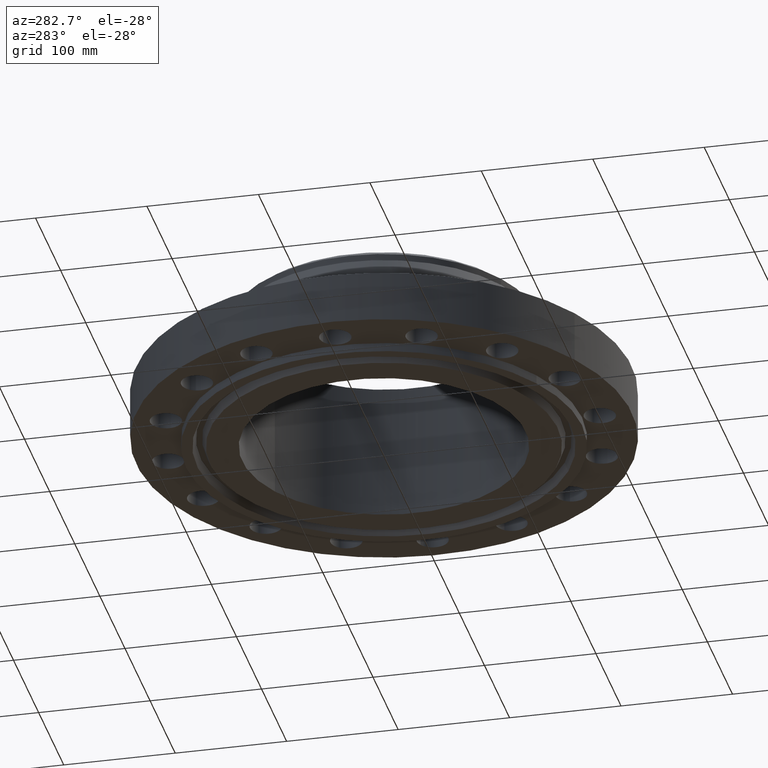
[diagram: clean part render]
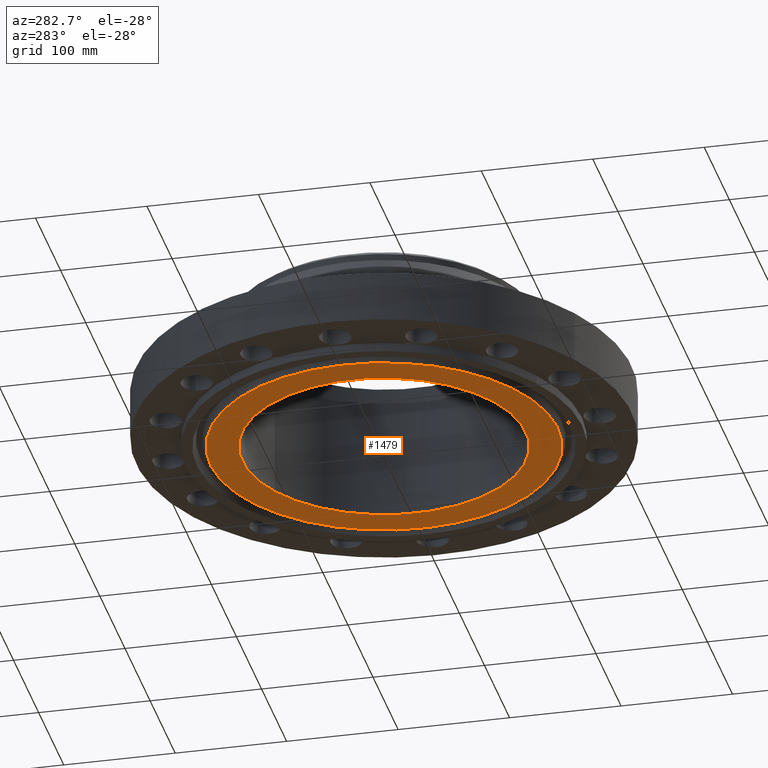
[diagram: same view with one face highlighted and labeled with its STEP entity id]
A machine part, auxiliary view. The second image highlights one B-rep face of the part: STEP entity #1479.
In plain terms, the highlighted planar face has unit normal (0, 0, -1).
Its self-contained STEP definition (entity closure, byte-faithful):
#378=AXIS2_PLACEMENT_3D('Circle Axis2P3D',#376,#377,$) ;
#402=AXIS2_PLACEMENT_3D('Circle Axis2P3D',#400,#401,$) ;
#1432=AXIS2_PLACEMENT_3D('Plane Axis2P3D',#1429,#1430,#1431) ;
#1459=AXIS2_PLACEMENT_3D('Circle Axis2P3D',#1457,#1458,$) ;
#1468=AXIS2_PLACEMENT_3D('Circle Axis2P3D',#1466,#1467,$) ;
#373=CARTESIAN_POINT('Vertex',(2.40192194842,4.39668863509,-0.313000000001)) ;
#376=CARTESIAN_POINT('Axis2P3D Location',(0.,0.,-0.313000000001)) ;
#380=CARTESIAN_POINT('Vertex',(-2.40192194842,-4.39668863509,-0.313000000001)) ;
#400=CARTESIAN_POINT('Axis2P3D Location',(0.,0.,-0.313000000001)) ;
#1429=CARTESIAN_POINT('Axis2P3D Location',(0.,5.01000000002,-0.313000000001)) ;
#1457=CARTESIAN_POINT('Axis2P3D Location',(-5.59482469102E-016,1.67844740731E-015,-0.313000000001)) ;
#1461=CARTESIAN_POINT('Vertex',(-2.94391251981,5.38879572131,-0.313000000001)) ;
#1463=CARTESIAN_POINT('Vertex',(2.94391251981,-5.38879572131,-0.313000000001)) ;
#1466=CARTESIAN_POINT('Axis2P3D Location',(0.,0.,-0.313000000001)) ;
#377=DIRECTION('Axis2P3D Direction',(0.,0.,-0.0393700787402)) ;
#401=DIRECTION('Axis2P3D Direction',(0.,0.,-0.0393700787402)) ;
#1430=DIRECTION('Axis2P3D Direction',(0.,0.,-0.0393700787402)) ;
#1431=DIRECTION('Axis2P3D XDirection',(0.0393700787402,0.,0.)) ;
#1458=DIRECTION('Axis2P3D Direction',(0.,0.,-0.0393700787402)) ;
#1467=DIRECTION('Axis2P3D Direction',(0.,0.,-0.0393700787402)) ;
#1472=ORIENTED_EDGE('',*,*,#1465,.T.) ;
#1473=ORIENTED_EDGE('',*,*,#1470,.T.) ;
#1476=ORIENTED_EDGE('',*,*,#382,.F.) ;
#1477=ORIENTED_EDGE('',*,*,#404,.F.) ;
#1478=FACE_BOUND('',#1475,.T.) ;
#1479=ADVANCED_FACE('PartBody',(#1474,#1478),#1433,.T.) ;
#379=CIRCLE('generated circle',#378,5.01000000002) ;
#403=CIRCLE('generated circle',#402,5.01000000002) ;
#1460=CIRCLE('generated circle',#1459,6.14050000002) ;
#1469=CIRCLE('generated circle',#1468,6.14050000002) ;
#382=EDGE_CURVE('',#374,#381,#379,.T.) ;
#404=EDGE_CURVE('',#381,#374,#403,.T.) ;
#1465=EDGE_CURVE('',#1462,#1464,#1460,.T.) ;
#1470=EDGE_CURVE('',#1464,#1462,#1469,.T.) ;
#1471=EDGE_LOOP('',(#1472,#1473)) ;
#1475=EDGE_LOOP('',(#1476,#1477)) ;
#1474=FACE_OUTER_BOUND('',#1471,.T.) ;
#1433=PLANE('',#1432) ;
#374=VERTEX_POINT('',#373) ;
#381=VERTEX_POINT('',#380) ;
#1462=VERTEX_POINT('',#1461) ;
#1464=VERTEX_POINT('',#1463) ;